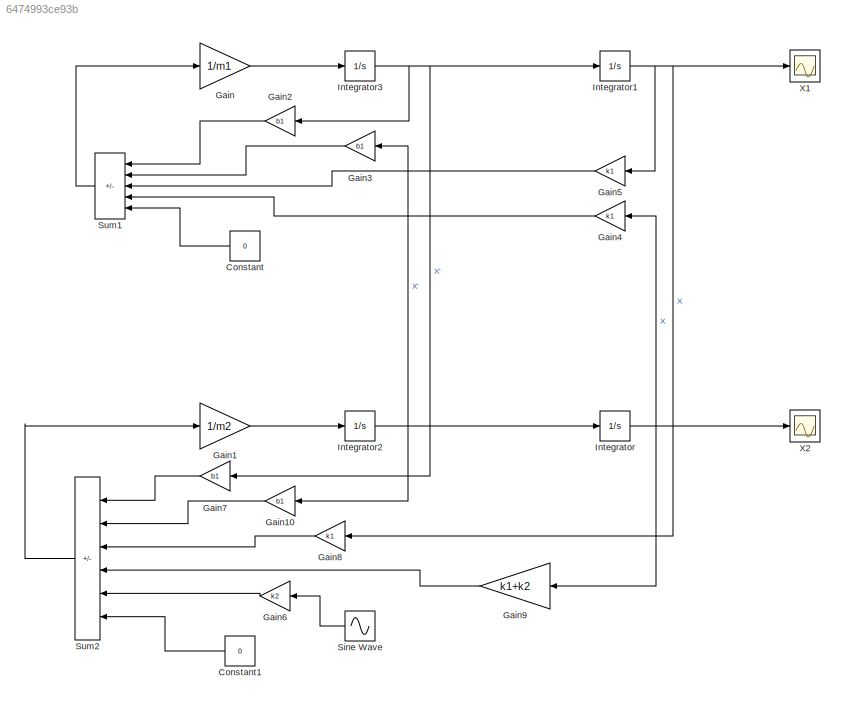
MODEL slx_6474993ce93b
KIND model
CONFIG AbsTol = auto
CONFIG EnableMultiTasking = off
CONFIG FixedStep = auto
CONFIG MaxStep = auto
CONFIG MinStep = auto
CONFIG RelTol = 1e-3
CONFIG SampleTimeConstraint = Unconstrained
CONFIG SolverName = VariableStepAuto
CONFIG StartTime = 0.0
CONFIG StopTime = 10.0
BLOCK [Constant] Constant
  NameLocation = top
  Value = 0
BLOCK [Constant] Constant1
  NameLocation = top
  Value = 0
BLOCK [Gain] Gain
  Gain = 1/m1
BLOCK [Gain] Gain1
  Gain = 1/m2
BLOCK [Gain] Gain10
  Gain = b1
  NameLocation = top
BLOCK [Gain] Gain2
  Gain = b1
  NameLocation = top
BLOCK [Gain] Gain3
  Gain = b1
  NameLocation = top
BLOCK [Gain] Gain4
  Gain = k1
  NameLocation = top
BLOCK [Gain] Gain5
  Gain = k1
  NameLocation = top
BLOCK [Gain] Gain6
  Gain = k2
  NameLocation = top
BLOCK [Gain] Gain7
  Gain = b1
  NameLocation = top
BLOCK [Gain] Gain8
  Gain = k1
  NameLocation = top
BLOCK [Gain] Gain9
  Gain = k1+k2
  NameLocation = top
BLOCK [Integrator] Integrator
BLOCK [Integrator] Integrator1
BLOCK [Integrator] Integrator2
BLOCK [Integrator] Integrator3
BLOCK [Sin] Sine Wave
  Amplitude = 0.05
  Frequency = 0.5*pi
  NameLocation = top
  SampleTime = 0
BLOCK [Sum] Sum1
  IconShape = rectangular
  Inputs = -+-++
  NameLocation = top
BLOCK [Sum] Sum2
  IconShape = rectangular
  Inputs = +-+-+-
  NameLocation = top
BLOCK [Scope] X1
  Floating = off
  NumInputPorts = 1
  ScopeSpecificationString = Simulink.scopes.TimeScopeBlockCfg('CurrentConfiguration', extmgr.ConfigurationSet(extmgr.Configuration('Core','General UI',true),extmgr.Configuration('Core','Source UI',true),extmgr.Configuration('Sources','WiredSimulink',true),extmgr.Configuration('Visuals','Time Domain',true,'SerializedDisplays',{struct('MinYLimReal','-0.07016','MaxYLimReal','0.08038','YLabelReal','','MinYLimMag','0.00000','MaxY...<+1362ch>
BLOCK [Scope] X2
  Floating = off
  NumInputPorts = 1
  ScopeSpecificationString = Simulink.scopes.TimeScopeBlockCfg('CurrentConfiguration', extmgr.ConfigurationSet(extmgr.Configuration('Core','General UI',true),extmgr.Configuration('Core','Source UI',true),extmgr.Configuration('Sources','WiredSimulink',true,'DataLoggingVariableName','ScopeData1'),extmgr.Configuration('Visuals','Time Domain',true,'SerializedDisplays',{struct('MinYLimReal','-0.06637','MaxYLimReal','0.07082','YLab...<+1414ch>
LINE Constant1:1 -> Sum2:6
LINE Constant:1 -> Sum1:5
LINE Gain10:1 -> Sum2:2
LINE Gain1:1 -> Integrator2:1
LINE Gain2:1 -> Sum1:1
LINE Gain3:1 -> Sum1:2
LINE Gain4:1 -> Sum1:4
LINE Gain5:1 -> Sum1:3
LINE Gain6:1 -> Sum2:5
LINE Gain7:1 -> Sum2:1
LINE Gain8:1 -> Sum2:3
LINE Gain9:1 -> Sum2:4
LINE Gain:1 -> Integrator3:1
NET Integrator1:1 -> Gain5:1, Gain8:1, X1:1
NET Integrator2:1 -> Gain10:1, Gain3:1, Integrator:1
NET Integrator3:1 -> Gain2:1, Gain7:1, Integrator1:1
NET Integrator:1 -> Gain4:1, Gain9:1, X2:1
LINE Sine Wave:1 -> Gain6:1
LINE Sum1:1 -> Gain:1
LINE Sum2:1 -> Gain1:1
note: NET lines group one-source signal fan-out (src -> all destinations, sorted); 1:1 wires keep LINE
